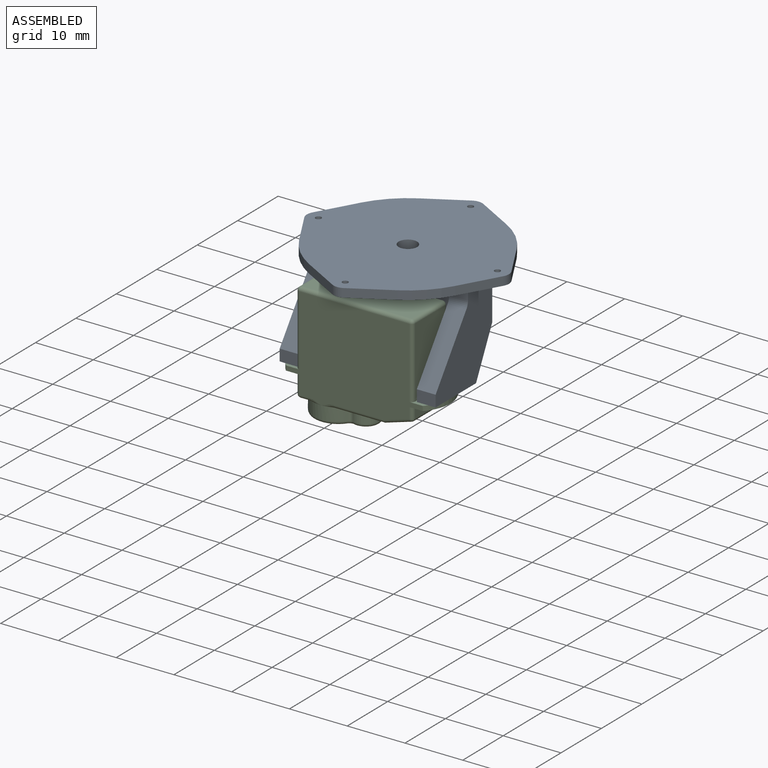
[diagram: assembled view]
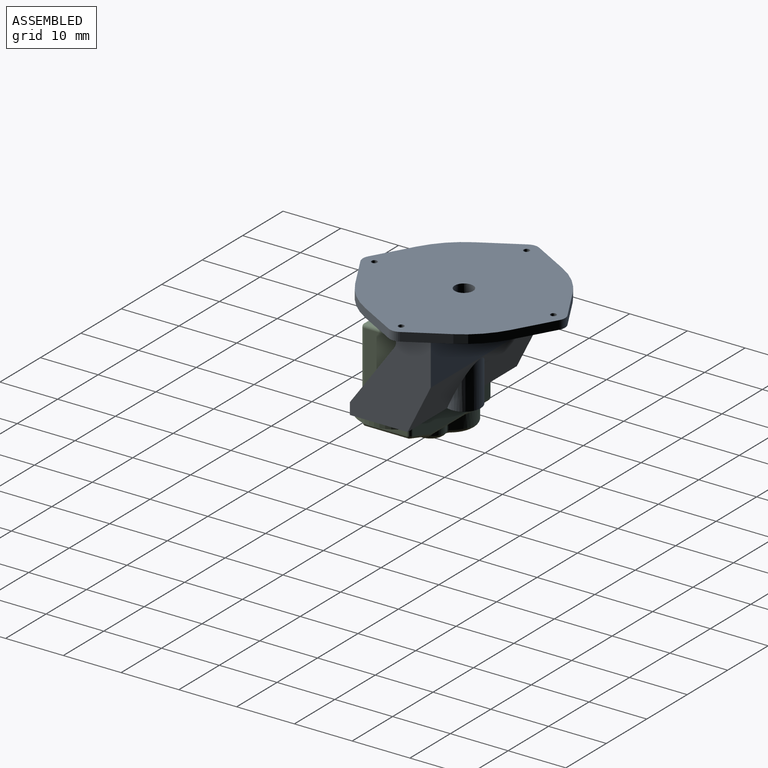
[diagram: assembled view, second angle]
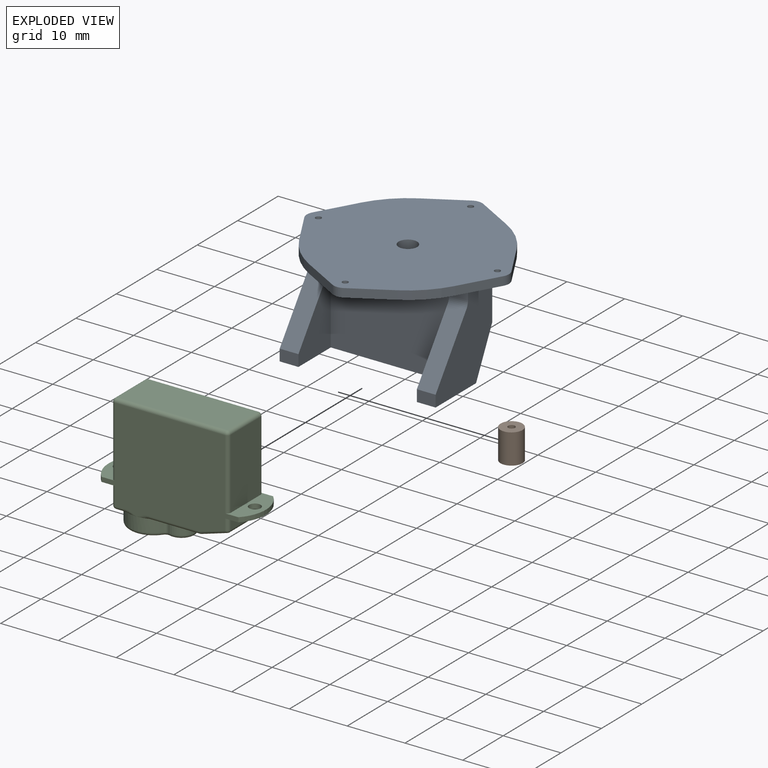
[diagram: exploded view]
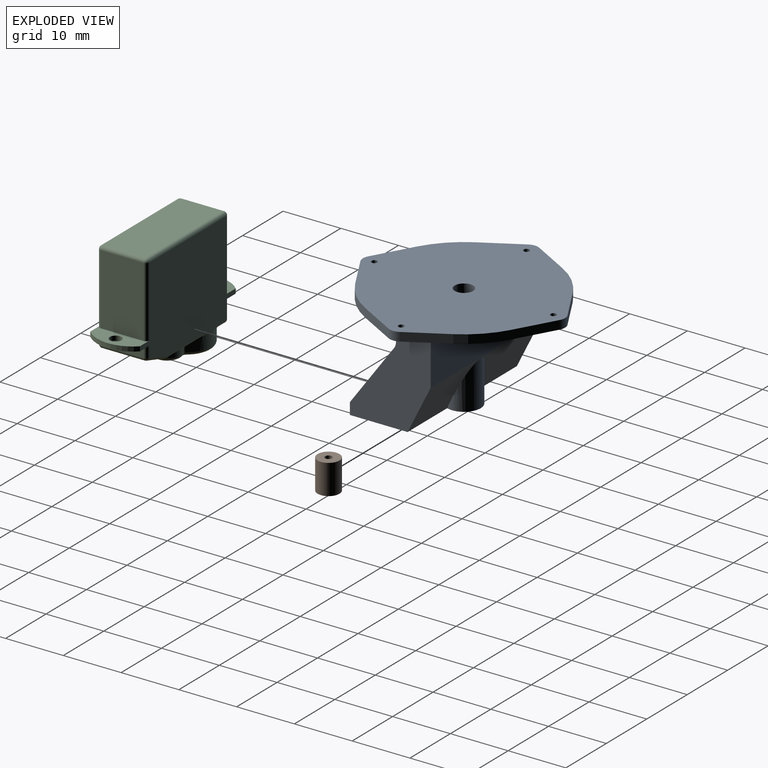
[diagram: exploded view, second angle]
ASSEMBLY  parts=3 mates=4
PART A: 42 faces, bbox 35x35x18 mm
  f0: plane 27x16.5mm, normal (0,-1,0), area 356.8mm2, adj f1,f24,f25,f27,f28,f31,f40,f41
  f1: plane 35x35mm, normal (0,0,-1), area 637.4mm2, adj f0,f2,f3,f4,f5,f6,f7,f8
  f2: plane 6.63x3.74mm, normal (0.49,-0.87,0), area 11.4mm2, adj f1,f3,f22,f23
  f3: cylinder r=15.5mm len=5.88mm, axis (0,0,-1), area 12.6mm2, adj f1,f2,f4,f23
  f4: plane 6.63x3.74mm, normal (0.87,-0.49,0), area 11.4mm2, adj f1,f3,f5,f23
  f5: cylinder r=2mm len=1.97mm, axis (0,0,-1), area 3.1mm2, adj f1,f4,f6,f23
  f6: plane 6.63x3.74mm, normal (0.87,0.49,0), area 11.4mm2, adj f1,f5,f7,f23
  f7: cylinder r=15.5mm len=5.88mm, axis (0,0,-1), area 12.6mm2, adj f1,f6,f8,f23
  f8: plane 6.63x3.74mm, normal (0.49,0.87,0), area 11.4mm2, adj f1,f7,f9,f23
  f9: cylinder r=2mm len=1.97mm, axis (0,0,-1), area 3.1mm2, adj f1,f8,f10,f23
  f10: plane 6.63x3.74mm, normal (-0.49,0.87,0), area 11.4mm2, adj f1,f9,f11,f23
  f11: cylinder r=15.5mm len=5.88mm, axis (0,0,-1), area 12.6mm2, adj f1,f10,f12,f23
  f12: plane 6.63x3.74mm, normal (-0.87,0.49,0), area 11.4mm2, adj f1,f11,f13,f23
  f13: cylinder r=2mm len=1.97mm, axis (0,0,-1), area 3.1mm2, adj f1,f12,f14,f23
  f14: plane 6.63x3.74mm, normal (-0.87,-0.49,0), area 11.4mm2, adj f1,f13,f15,f23
  f15: cylinder r=15.5mm len=5.88mm, axis (0,0,-1), area 12.6mm2, adj f1,f14,f16,f23
  f16: plane 6.63x3.74mm, normal (-0.49,-0.87,0), area 11.4mm2, adj f1,f15,f22,f23
  f17: cylinder r=0.5mm len=1.5mm, axis (0,0,-1), area 4.7mm2, adj f1,f23
  f18: cylinder r=0.5mm len=1.5mm, axis (0,0,-1), area 4.7mm2, adj f1,f23
  f19: cylinder r=0.5mm len=1.5mm, axis (0,0,-1), area 4.7mm2, adj f1,f23
  f20: cylinder r=0.5mm len=1.5mm, axis (0,0,-1), area 4.7mm2, adj f1,f23
  f21: cylinder r=1.6mm len=18mm, axis (0,0,-1), area 181mm2, adj f23,f27
  f22: cylinder r=2mm len=1.97mm, axis (0,0,-1), area 3.1mm2, adj f1,f2,f16,f23
  f23: plane 35x35mm, normal (0,0,1), area 791.3mm2, adj f2,f3,f4,f5,f6,f7,f8,f9
  f24: plane 16.5x14mm, normal (-1,0,0), area 143mm2, adj f0,f1,f26,f27,f29,f32,f34,f40
  f25: plane 16.5x14mm, normal (1,0,0), area 143mm2, adj f0,f1,f26,f27,f30,f33,f34,f41
  f26: plane 27x8.5mm, normal (0,1,0), area 229.5mm2, adj f1,f24,f25,f34
  f27: plane 27x13.9mm, normal (0,0,-1), area 115.3mm2, adj f0,f21,f24,f25,f28,f29,f30,f31
  f28: plane 13.65x8mm, normal (1,0,0), area 60mm2, adj f0,f27,f29,f32,f40
  f29: plane 3.25x2mm, normal (0,-1,0), area 6.5mm2, adj f24,f27,f28,f32
  f30: plane 3.25x2mm, normal (0,-1,0), area 6.5mm2, adj f25,f27,f31,f33
  f31: plane 13.65x8mm, normal (-1,0,0), area 60mm2, adj f0,f27,f30,f33,f41
  f32: plane 10.47x7.62mm, normal (0,-0.81,0.59), area 42.1mm2, adj f24,f28,f29,f40
  f33: plane 10.47x7.62mm, normal (0,-0.81,0.59), area 42.1mm2, adj f25,f30,f31,f41
  f34: plane 27x8mm, normal (0,0.89,-0.45), area 199.2mm2, adj f24,f25,f26,f27,f35
  f35: cylinder r=2.9mm len=7.83mm, axis (0,0,1), area 53.9mm2, adj f27,f34
  f36: cylinder r=0.5mm len=4mm, axis (0,0,-1), area 12.6mm2, adj f27,f37
  f37: plane 1x1mm, normal (0,0,-1), area 0.8mm2, adj f36
  f38: cylinder r=0.5mm len=4mm, axis (0,0,-1), area 12.6mm2, adj f27,f39
  f39: plane 1x1mm, normal (0,0,-1), area 0.8mm2, adj f38
  f40: cylinder r=2mm len=3.25mm, axis (1,0,0), area 4.1mm2, adj f0,f24,f28,f32
  f41: cylinder r=2mm len=3.25mm, axis (1,0,0), area 4.1mm2, adj f0,f25,f31,f33
PART B: 4 faces, bbox 3.8x5.2x3.8 mm
  f0: cylinder r=0.6mm len=5.2mm, axis (0,-1,0), area 19.6mm2, adj f2,f3
  f1: cylinder r=1.9mm len=5.2mm, axis (0,-1,0), area 62.1mm2, adj f2,f3
  f2: plane 3.8x3.8mm, normal (0,1,0), area 10.2mm2, adj f0,f1
  f3: plane 3.8x3.8mm, normal (0,-1,0), area 10.2mm2, adj f0,f1
PART C: 69 faces, bbox 27.3x20.3x9.5 mm
  f0: plane 8.6x4.1mm, normal (0,-1,0), area 22.4mm2, adj f3,f4,f9,f20,f22,f62,f65
  f1: plane 8.6x4.1mm, normal (0,-1,0), area 22.4mm2, adj f3,f4,f11,f19,f21,f57,f59
  f2: plane 8.6x4.1mm, normal (0,1,0), area 22.4mm2, adj f3,f4,f12,f19,f21,f25,f31
  f3: plane 23.85x16.95mm, normal (0,0,-1), area 309.5mm2, adj f0,f1,f2,f8,f21,f22,f31,f34
  f4: plane 23.85x16.95mm, normal (0,0,1), area 309.5mm2, adj f0,f1,f2,f8,f21,f22,f24,f25
  f5: plane 8.62x7.4mm, normal (0,1,0), area 33.8mm2, adj f14,f36,f44,f50,f51
  f6: plane 1.51x1.51mm, normal (0,1,0), area 0.9mm2, adj f14,f26,f29
  f7: plane 7.4x1.85mm, normal (-1,0,0), area 13.7mm2, adj f8,f45,f52,f53
  f8: plane 8.6x4.1mm, normal (0,1,0), area 22.4mm2, adj f3,f4,f7,f20,f22,f45,f52
  f9: plane 12.2x7.4mm, normal (-1,0,0), area 90.3mm2, adj f0,f62,f65,f68
  f10: plane 19x7.4mm, normal (0,-1,0), area 140.6mm2, adj f58,f63,f64,f68
  f11: plane 12.2x7.4mm, normal (1,0,0), area 90.3mm2, adj f1,f57,f58,f59
  f12: plane 7.48x3.88mm, normal (1,0,0), area 24.7mm2, adj f2,f25,f28,f29,f30,f31,f32
  f13: plane 1.51x1.51mm, normal (0,1,0), area 0.9mm2, adj f14,f32,f35
  f14: cylinder r=4.3mm len=8.6mm, axis (0,-1,0), area 47.5mm2, adj f5,f6,f13,f24,f28,f30,f34,f36
  f15: cylinder r=1.9mm len=3.8mm, axis (0,-1,0), area 33.4mm2, adj f17,f18
  f16: cylinder r=2.4mm len=4.8mm, axis (0,-1,0), area 14.2mm2, adj f36,f37,f39,f42
  f17: plane 10.3x7.4mm, normal (0,1,0), area 41.1mm2, adj f15,f38,f40,f41,f42
  f18: plane 3.8x3.8mm, normal (0,1,0), area 11.3mm2, adj f15
  f19: cylinder r=1mm len=2mm, axis (0,1,0), area 5mm2, adj f1,f2
  f20: cylinder r=1mm len=2mm, axis (0,1,0), area 5mm2, adj f0,f8
  f21: cylinder r=6.16mm len=8.6mm, axis (0,1,0), area 7.6mm2, adj f1,f2,f3,f4
  f22: cylinder r=6.16mm len=8.6mm, axis (0,1,0), area 7.6mm2, adj f0,f3,f4,f8
  f23: plane 7.4x4.49mm, normal (-0.29,0.96,0), area 34.7mm2, adj f46,f50,f53,f56
  f24: bspline ~2.45x0.73mm, area 0.9mm2, adj f4,f14,f26
  f25: cylinder r=0.6mm len=3.2mm, axis (0,-1,0), area 3mm2, adj f2,f4,f12,f27
  f26: cylinder r=0.6mm len=1.51mm, axis (1,0,0), area 1.4mm2, adj f4,f6,f24,f27
  f27: sphere r=0.6mm, area 0.6mm2, adj f25,f26,f29
  f28: bspline ~2.45x0.73mm, area 0.9mm2, adj f12,f14,f29
  f29: cylinder r=0.6mm len=1.51mm, axis (0,0,1), area 1.4mm2, adj f6,f12,f27,f28
  f30: bspline ~2.45x0.73mm, area 0.9mm2, adj f12,f14,f32
  f31: cylinder r=0.6mm len=3.2mm, axis (0,1,0), area 3mm2, adj f2,f3,f12,f33
  f32: cylinder r=0.6mm len=1.51mm, axis (0,0,1), area 1.4mm2, adj f12,f13,f30,f33
  f33: sphere r=0.6mm, area 0.6mm2, adj f31,f32,f35
  f34: bspline ~2.45x0.73mm, area 0.9mm2, adj f3,f14,f35
  f35: cylinder r=0.6mm len=1.51mm, axis (-1,0,0), area 1.4mm2, adj f3,f13,f33,f34
  f36: torus R=3mm, axis (0,-1,0), area 9.8mm2, adj f5,f14,f16,f37,f39
  f37: cylinder r=0.6mm len=2.18mm, axis (0,1,0), area 1.4mm2, adj f14,f16,f36,f40
  f38: torus R=3.7mm, axis (0,1,0), area 19.3mm2, adj f14,f17,f40,f41
  f39: cylinder r=0.6mm len=2.18mm, axis (0,1,0), area 1.4mm2, adj f14,f16,f36,f41
  f40: torus R=1.2mm, axis (0,1,0), area 0.9mm2, adj f17,f37,f38,f42
  f41: torus R=1.2mm, axis (0,1,0), area 0.9mm2, adj f17,f38,f39,f42
  f42: torus R=1.8mm, axis (0,1,0), area 7.6mm2, adj f16,f17,f40,f41
  f43: bspline ~2.45x0.73mm, area 0.9mm2, adj f3,f14,f44
  f44: cylinder r=0.6mm len=8.62mm, axis (-1,0,0), area 8.1mm2, adj f3,f5,f43,f47
  f45: cylinder r=0.6mm len=1.85mm, axis (0,-1,0), area 1.7mm2, adj f3,f7,f8,f49
  f46: cylinder r=0.6mm len=4.66mm, axis (0.96,0.29,0), area 4.4mm2, adj f3,f23,f47,f49
  f47: sphere r=0.6mm, area 0.1mm2, adj f44,f46,f50
  f48: bspline ~2.45x0.73mm, area 0.9mm2, adj f4,f14,f51
  f49: sphere r=0.6mm, area 0.5mm2, adj f45,f46,f53
  f50: cylinder r=0.6mm len=7.4mm, axis (0,0,1), area 1.3mm2, adj f5,f23,f47,f54
  f51: cylinder r=0.6mm len=8.62mm, axis (1,0,0), area 8.1mm2, adj f4,f5,f48,f54
  f52: cylinder r=0.6mm len=1.85mm, axis (0,1,0), area 1.7mm2, adj f4,f7,f8,f55
  f53: cylinder r=0.6mm len=7.4mm, axis (0,0,-1), area 5.7mm2, adj f7,f23,f49,f55
  f54: sphere r=0.6mm, area 0.1mm2, adj f50,f51,f56
  f55: sphere r=0.6mm, area 0.5mm2, adj f52,f53,f56
  f56: cylinder r=0.6mm len=4.66mm, axis (0.96,0.29,0), area 4.4mm2, adj f4,f23,f54,f55
  f57: cylinder r=0.6mm len=12.2mm, axis (0,-1,0), area 11.5mm2, adj f1,f4,f11,f60
  f58: cylinder r=0.6mm len=7.4mm, axis (0,0,-1), area 7mm2, adj f10,f11,f60,f61
  f59: cylinder r=0.6mm len=12.2mm, axis (0,1,0), area 11.5mm2, adj f1,f3,f11,f61
  f60: sphere r=0.6mm, area 0.6mm2, adj f57,f58,f63
  f61: sphere r=0.6mm, area 0.6mm2, adj f58,f59,f64
  f62: cylinder r=0.6mm len=12.2mm, axis (0,1,0), area 11.5mm2, adj f0,f4,f9,f66
  f63: cylinder r=0.6mm len=19mm, axis (-1,0,0), area 17.9mm2, adj f4,f10,f60,f66
  f64: cylinder r=0.6mm len=19mm, axis (1,0,0), area 17.9mm2, adj f3,f10,f61,f67
  f65: cylinder r=0.6mm len=12.2mm, axis (0,-1,0), area 11.5mm2, adj f0,f3,f9,f67
  f66: sphere r=0.6mm, area 0.6mm2, adj f62,f63,f68
  f67: sphere r=0.6mm, area 0.6mm2, adj f64,f65,f68
  f68: cylinder r=0.6mm len=7.4mm, axis (0,0,1), area 7mm2, adj f9,f10,f66,f67
PLACE A t=(16.14,17.65,15.67)mm fixed
PLACE B rot(axis=(-1,0,0),90deg) t=(3.39,10.35,6.27)mm
PLACE C rot(axis=(0,-0.71,0.71),180deg) t=(14.99,10.35,3.27)mm
MATE parallel B.f1 <-> C.f15  axis (0,0,1) through (9.19,10.35,-2.43)mm
MATE planar C.f3 <-> A.f0  axis (0,1,0) through (14.9,14.65,3.27)mm
MATE planar C.f0 <-> A.f27  axis (0,0,1) through (26.59,10.35,-0.83)mm
MATE revolute A.f38 <-> C.f19  axis (0,0,-1) through (3.29,10.35,-0.83)mm
